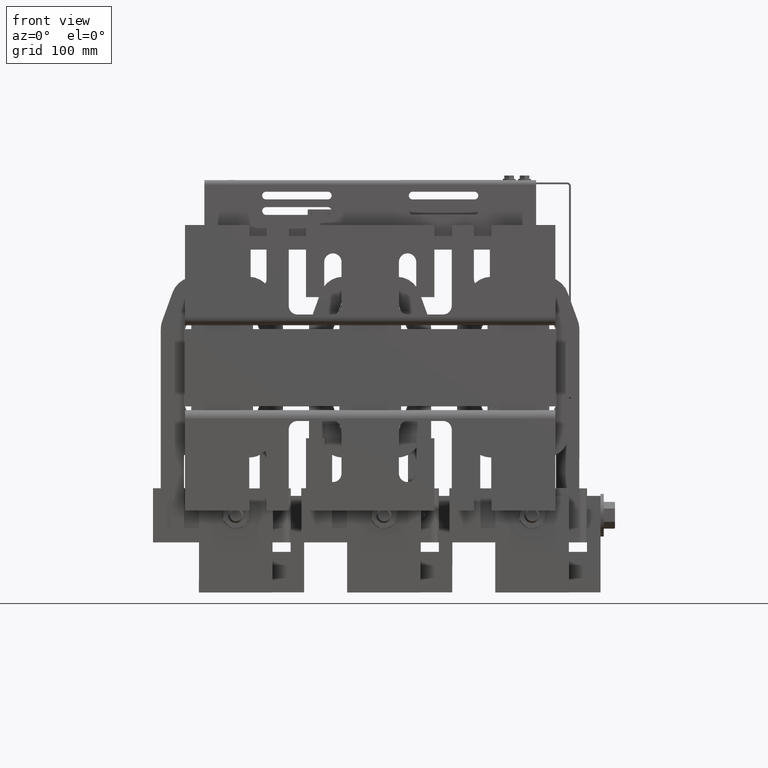
[diagram: clean part render]
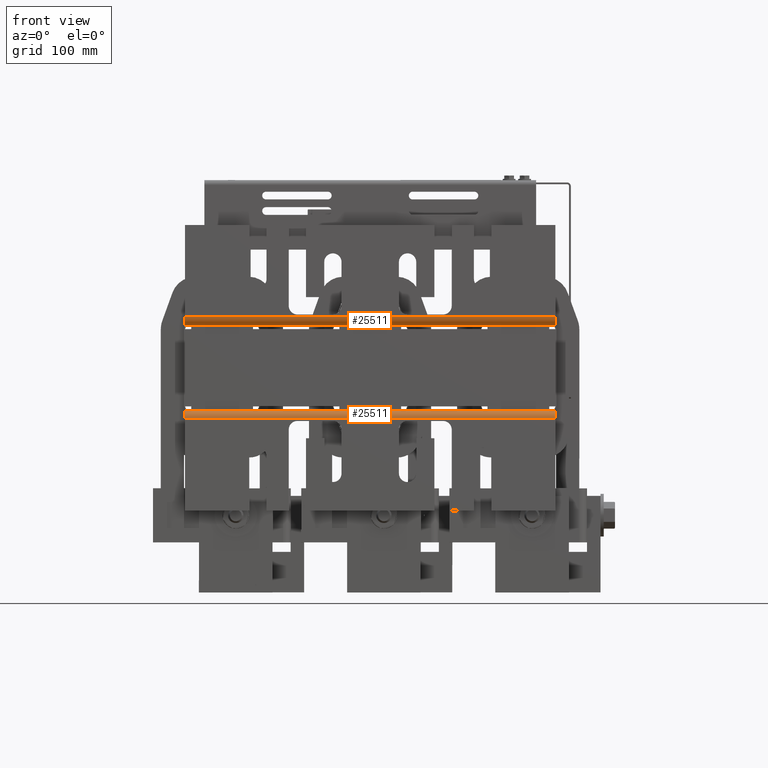
[diagram: same view with one multi-face feature highlighted, each face labeled with its STEP entity id]
A machine part, front view. The highlighted faces form ONE feature: a constant-radius fillet chain: 2 tangent blend faces with common blend radius 6.8326 mm. The faces share edges in the B-rep.
Their STEP definitions:
[1] entity #25511 (Cylinder):
#3008=FACE_OUTER_BOUND('',#4471,.T.);
#4471=EDGE_LOOP('',(#18521,#18522,#18523,#18524));
#6340=LINE('',#37911,#8743);
#6341=LINE('',#37915,#8744);
#8743=VECTOR('',#30894,0.393700787401575);
#8744=VECTOR('',#30899,0.393700787401575);
#10878=CIRCLE('',#27922,0.269);
#10881=CIRCLE('',#27931,0.269);
#11879=VERTEX_POINT('',#37881);
#11880=VERTEX_POINT('',#37882);
#11888=VERTEX_POINT('',#37909);
#11889=VERTEX_POINT('',#37913);
#14416=EDGE_CURVE('',#11879,#11880,#10878,.T.);
#14431=EDGE_CURVE('',#11880,#11888,#6340,.T.);
#14432=EDGE_CURVE('',#11888,#11889,#10881,.T.);
#14433=EDGE_CURVE('',#11879,#11889,#6341,.T.);
#18521=ORIENTED_EDGE('',*,*,#14432,.T.);
#18522=ORIENTED_EDGE('',*,*,#14433,.F.);
#18523=ORIENTED_EDGE('',*,*,#14416,.T.);
#18524=ORIENTED_EDGE('',*,*,#14431,.T.);
#24989=CYLINDRICAL_SURFACE('',#27930,0.269);
#25511=ADVANCED_FACE('',(#3008),#24989,.T.);
#27922=AXIS2_PLACEMENT_3D('',#37883,#30866,#30867);
#27930=AXIS2_PLACEMENT_3D('',#37912,#30895,#30896);
#27931=AXIS2_PLACEMENT_3D('',#37914,#30897,#30898);
#30866=DIRECTION('center_axis',(0.,0.,1.));
#30867=DIRECTION('ref_axis',(4.87467299984701E-16,-1.,0.));
#30894=DIRECTION('',(0.,0.,1.));
#30895=DIRECTION('center_axis',(0.,0.,1.));
#30896=DIRECTION('ref_axis',(4.87467299984701E-16,-1.,0.));
#30897=DIRECTION('center_axis',(0.,0.,-1.));
#30898=DIRECTION('ref_axis',(4.87467299984701E-16,-1.,0.));
#30899=DIRECTION('',(0.,0.,1.));
#37881=CARTESIAN_POINT('',(-0.269,0.,-6.));
#37882=CARTESIAN_POINT('',(-8.74191357972564E-17,0.269,-6.));
#37883=CARTESIAN_POINT('Origin',(-0.269,0.269,-6.));
#37909=CARTESIAN_POINT('',(-8.74191357972564E-17,0.269,6.));
#37911=CARTESIAN_POINT('',(-8.74191357972564E-17,0.269,0.));
#37912=CARTESIAN_POINT('Origin',(-0.269,0.269,0.));
#37913=CARTESIAN_POINT('',(-0.269,0.,6.));
#37914=CARTESIAN_POINT('Origin',(-0.269,0.269,6.));
#37915=CARTESIAN_POINT('',(-0.269,0.,0.));
[2] entity #25511 (Cylinder):
#3008=FACE_OUTER_BOUND('',#4471,.T.);
#4471=EDGE_LOOP('',(#18521,#18522,#18523,#18524));
#6340=LINE('',#37911,#8743);
#6341=LINE('',#37915,#8744);
#8743=VECTOR('',#30894,0.393700787401575);
#8744=VECTOR('',#30899,0.393700787401575);
#10878=CIRCLE('',#27922,0.269);
#10881=CIRCLE('',#27931,0.269);
#11879=VERTEX_POINT('',#37881);
#11880=VERTEX_POINT('',#37882);
#11888=VERTEX_POINT('',#37909);
#11889=VERTEX_POINT('',#37913);
#14416=EDGE_CURVE('',#11879,#11880,#10878,.T.);
#14431=EDGE_CURVE('',#11880,#11888,#6340,.T.);
#14432=EDGE_CURVE('',#11888,#11889,#10881,.T.);
#14433=EDGE_CURVE('',#11879,#11889,#6341,.T.);
#18521=ORIENTED_EDGE('',*,*,#14432,.T.);
#18522=ORIENTED_EDGE('',*,*,#14433,.F.);
#18523=ORIENTED_EDGE('',*,*,#14416,.T.);
#18524=ORIENTED_EDGE('',*,*,#14431,.T.);
#24989=CYLINDRICAL_SURFACE('',#27930,0.269);
#25511=ADVANCED_FACE('',(#3008),#24989,.T.);
#27922=AXIS2_PLACEMENT_3D('',#37883,#30866,#30867);
#27930=AXIS2_PLACEMENT_3D('',#37912,#30895,#30896);
#27931=AXIS2_PLACEMENT_3D('',#37914,#30897,#30898);
#30866=DIRECTION('center_axis',(0.,0.,1.));
#30867=DIRECTION('ref_axis',(4.87467299984701E-16,-1.,0.));
#30894=DIRECTION('',(0.,0.,1.));
#30895=DIRECTION('center_axis',(0.,0.,1.));
#30896=DIRECTION('ref_axis',(4.87467299984701E-16,-1.,0.));
#30897=DIRECTION('center_axis',(0.,0.,-1.));
#30898=DIRECTION('ref_axis',(4.87467299984701E-16,-1.,0.));
#30899=DIRECTION('',(0.,0.,1.));
#37881=CARTESIAN_POINT('',(-0.269,0.,-6.));
#37882=CARTESIAN_POINT('',(-8.74191357972564E-17,0.269,-6.));
#37883=CARTESIAN_POINT('Origin',(-0.269,0.269,-6.));
#37909=CARTESIAN_POINT('',(-8.74191357972564E-17,0.269,6.));
#37911=CARTESIAN_POINT('',(-8.74191357972564E-17,0.269,0.));
#37912=CARTESIAN_POINT('Origin',(-0.269,0.269,0.));
#37913=CARTESIAN_POINT('',(-0.269,0.,6.));
#37914=CARTESIAN_POINT('Origin',(-0.269,0.269,6.));
#37915=CARTESIAN_POINT('',(-0.269,0.,0.));